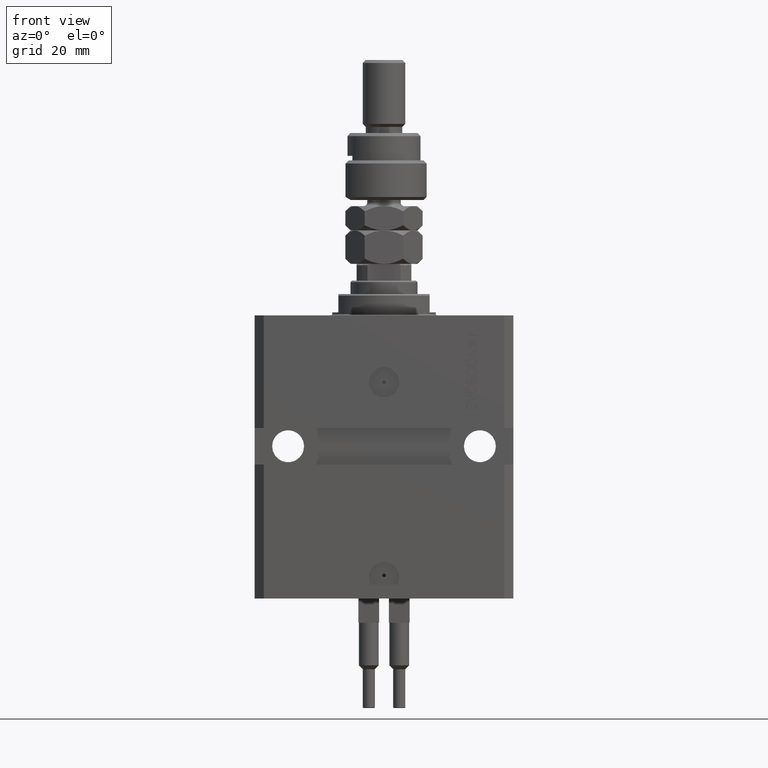
[diagram: clean part render]
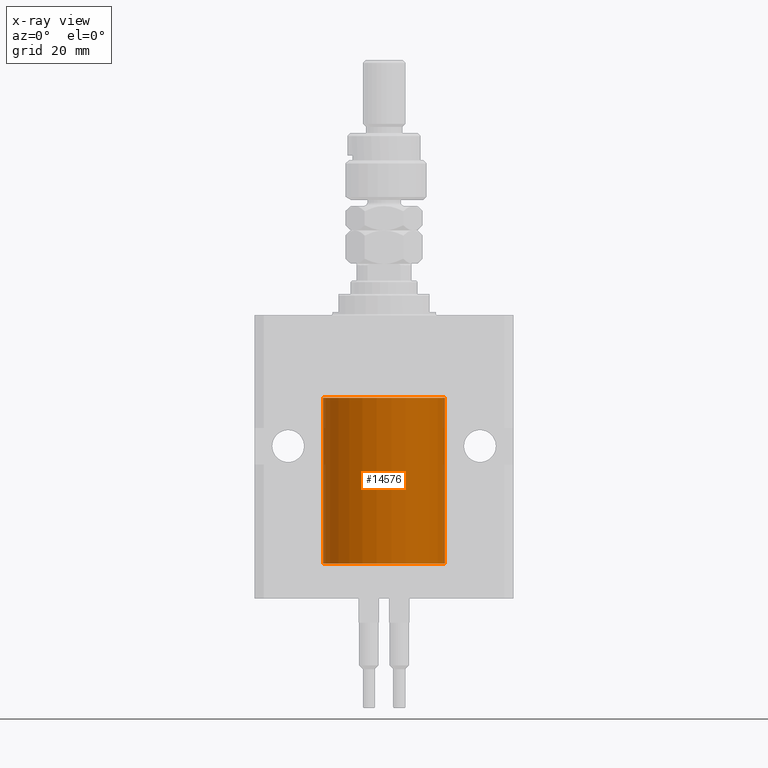
[diagram: x-ray — body ghosted, one internal face saturated and labeled with its STEP entity id]
A machine part, front view, then the same camera in x-ray: the body is ghosted and one INTERNAL B-rep face — a face not visible from any outside direction — is saturated and labeled: STEP entity #14576.
In plain terms, the highlighted cylindrical surface (partial cylindrical patch) has radius 20 mm, axis along (0, 0, 1).
Its self-contained STEP definition (entity closure, byte-faithful):
#136 = CARTESIAN_POINT ( 'NONE',  ( -20.00000000000000000, 2.449293598294706513E-15, -81.60000000000000853 ) ) ;
#766 = CARTESIAN_POINT ( 'NONE',  ( 19.99256494106949944, -0.5573539455062719306, -79.32646132359609226 ) ) ;
#912 = LINE ( 'NONE', #49115, #42212 ) ;
#1432 = ORIENTED_EDGE ( 'NONE', *, *, #43596, .F. ) ;
#1591 = EDGE_LOOP ( 'NONE', ( #1432, #45479, #28044, #2609, #29523, #27790, #42612 ) ) ;
#2609 = ORIENTED_EDGE ( 'NONE', *, *, #41056, .F. ) ;
#2711 = EDGE_CURVE ( 'NONE', #39632, #10530, #5305, .T. ) ;
#3331 = DIRECTION ( 'NONE',  ( 1.000000000000000000, 0.000000000000000000, 0.000000000000000000 ) ) ;
#3509 = CARTESIAN_POINT ( 'NONE',  ( 19.99023198964933812, -0.6250000000000828226, -78.83503171949485022 ) ) ;
#5305 = LINE ( 'NONE', #48352, #22297 ) ;
#6122 = AXIS2_PLACEMENT_3D ( 'NONE', #35960, #11345, #3331 ) ;
#6137 = EDGE_CURVE ( 'NONE', #27048, #9987, #40641, .T. ) ;
#6875 = DIRECTION ( 'NONE',  ( 0.000000000000000000, 0.000000000000000000, 1.000000000000000000 ) ) ;
#8925 = DIRECTION ( 'NONE',  ( -0.000000000000000000, -0.000000000000000000, 1.000000000000000000 ) ) ;
#9987 = VERTEX_POINT ( 'NONE', #47212 ) ;
#10530 = VERTEX_POINT ( 'NONE', #47288 ) ;
#10756 = CARTESIAN_POINT ( 'NONE',  ( 19.99023198964933812, -0.6250000000000827116, -79.00000000000000000 ) ) ;
#11345 = DIRECTION ( 'NONE',  ( -0.000000000000000000, -0.000000000000000000, 1.000000000000000000 ) ) ;
#11662 = CARTESIAN_POINT ( 'NONE',  ( 19.99023198964934167, -0.6250000000000828226, -79.16479419982725574 ) ) ;
#11911 = CARTESIAN_POINT ( 'NONE',  ( 19.99023198964933812, -0.6250000000000827116, -79.00000000000000000 ) ) ;
#12117 = CARTESIAN_POINT ( 'NONE',  ( 19.99023198964933812, -0.6250000000000827116, -79.00000000000000000 ) ) ;
#12814 = DIRECTION ( 'NONE',  ( -0.000000000000000000, -0.000000000000000000, 1.000000000000000000 ) ) ;
#13732 = EDGE_CURVE ( 'NONE', #15407, #27048, #23213, .T. ) ;
#14576 = ADVANCED_FACE ( 'NONE', ( #35713 ), #15485, .F. ) ;
#15407 = VERTEX_POINT ( 'NONE', #24734 ) ;
#15485 = CYLINDRICAL_SURFACE ( 'NONE', #6122, 20.00000000000000000 ) ;
#15713 = CARTESIAN_POINT ( 'NONE',  ( 20.00000000000010303, 3.555666352936568165E-13, -78.37499999999667466 ) ) ;
#16300 = CARTESIAN_POINT ( 'NONE',  ( 20.00000000000000000, -4.058908006348821872E-15, -79.62500000000000000 ) ) ;
#16731 = DIRECTION ( 'NONE',  ( 1.000000000000000000, 0.000000000000000000, 0.000000000000000000 ) ) ;
#21392 = CARTESIAN_POINT ( 'NONE',  ( 0.000000000000000000, 0.000000000000000000, -27.10000000000000142 ) ) ;
#21649 = DIRECTION ( 'NONE',  ( 1.000000000000000000, 0.000000000000000000, 0.000000000000000000 ) ) ;
#21740 = CARTESIAN_POINT ( 'NONE',  ( -20.00000000000000000, 2.449293598294706513E-15, -27.10000000000000142 ) ) ;
#22214 = VERTEX_POINT ( 'NONE', #15713 ) ;
#22297 = VECTOR ( 'NONE', #12814, 1000.000000000000000 ) ;
#23201 = CARTESIAN_POINT ( 'NONE',  ( 20.00000000000000000, -0.1632180151482451602, -78.37499999999984368 ) ) ;
#23213 = LINE ( 'NONE', #136, #48266 ) ;
#24065 = CIRCLE ( 'NONE', #26568, 20.00000000000000000 ) ;
#24734 = CARTESIAN_POINT ( 'NONE',  ( -20.00000000000000000, 2.449293598294706513E-15, -81.60000000000000853 ) ) ;
#26568 = AXIS2_PLACEMENT_3D ( 'NONE', #30224, #6875, #21649 ) ;
#27048 = VERTEX_POINT ( 'NONE', #21740 ) ;
#27790 = ORIENTED_EDGE ( 'NONE', *, *, #47542, .T. ) ;
#27999 = CARTESIAN_POINT ( 'NONE',  ( 20.00000000000000000, -0.1650670266421430665, -79.62500000000002842 ) ) ;
#28044 = ORIENTED_EDGE ( 'NONE', *, *, #6137, .T. ) ;
#29523 = ORIENTED_EDGE ( 'NONE', *, *, #46025, .T. ) ;
#29633 = CARTESIAN_POINT ( 'NONE',  ( 20.00000000000000000, 0.000000000000000000, -81.60000000000000853 ) ) ;
#30224 = CARTESIAN_POINT ( 'NONE',  ( 0.000000000000000000, 0.000000000000000000, -81.60000000000000853 ) ) ;
#30484 = CARTESIAN_POINT ( 'NONE',  ( 20.00000000000010303, 3.555666352936568165E-13, -78.37499999999667466 ) ) ;
#35713 = FACE_OUTER_BOUND ( 'NONE', #1591, .T. ) ;
#35960 = CARTESIAN_POINT ( 'NONE',  ( 0.000000000000000000, 0.000000000000000000, -81.60000000000000853 ) ) ;
#38990 = AXIS2_PLACEMENT_3D ( 'NONE', #21392, #45001, #16731 ) ;
#39019 = CARTESIAN_POINT ( 'NONE',  ( 19.99766790699043995, -0.3264769477312362556, -78.44266063830006885 ) ) ;
#39632 = VERTEX_POINT ( 'NONE', #29633 ) ;
#40641 = CIRCLE ( 'NONE', #38990, 20.00000000000000000 ) ;
#40676 = B_SPLINE_CURVE_WITH_KNOTS ( 'NONE', 3,
 ( #11911, #11662, #766, #47691, #27999, #16300 ),
 .UNSPECIFIED., .F., .F.,
 ( 4, 2, 4 ),
 ( 0.002931526102908805446, 0.003419696219975630440, 0.003907866337042455000 ),
 .UNSPECIFIED. ) ;
#41056 = EDGE_CURVE ( 'NONE', #22214, #9987, #912, .T. ) ;
#41445 = VERTEX_POINT ( 'NONE', #12117 ) ;
#42212 = VECTOR ( 'NONE', #8925, 1000.000000000000000 ) ;
#42612 = ORIENTED_EDGE ( 'NONE', *, *, #2711, .F. ) ;
#43596 = EDGE_CURVE ( 'NONE', #15407, #39632, #24065, .T. ) ;
#45001 = DIRECTION ( 'NONE',  ( 0.000000000000000000, 0.000000000000000000, 1.000000000000000000 ) ) ;
#45479 = ORIENTED_EDGE ( 'NONE', *, *, #13732, .T. ) ;
#46025 = EDGE_CURVE ( 'NONE', #22214, #41445, #51268, .T. ) ;
#46285 = CARTESIAN_POINT ( 'NONE',  ( 19.99257096259849931, -0.5571491910957669935, -78.67319862246098694 ) ) ;
#47212 = CARTESIAN_POINT ( 'NONE',  ( 20.00000000000000000, 0.000000000000000000, -27.10000000000000142 ) ) ;
#47288 = CARTESIAN_POINT ( 'NONE',  ( 20.00000000000000000, -4.058908006348821872E-15, -79.62500000000000000 ) ) ;
#47542 = EDGE_CURVE ( 'NONE', #41445, #10530, #40676, .T. ) ;
#47691 = CARTESIAN_POINT ( 'NONE',  ( 19.99766246719553209, -0.3267907458473873761, -79.55716086079694094 ) ) ;
#48266 = VECTOR ( 'NONE', #50438, 1000.000000000000000 ) ;
#48352 = CARTESIAN_POINT ( 'NONE',  ( 20.00000000000000000, 0.000000000000000000, -81.60000000000000853 ) ) ;
#49115 = CARTESIAN_POINT ( 'NONE',  ( 20.00000000000000000, 0.000000000000000000, -81.60000000000000853 ) ) ;
#50438 = DIRECTION ( 'NONE',  ( -0.000000000000000000, -0.000000000000000000, 1.000000000000000000 ) ) ;
#51268 = B_SPLINE_CURVE_WITH_KNOTS ( 'NONE', 3,
 ( #30484, #23201, #39019, #46285, #3509, #10756 ),
 .UNSPECIFIED., .F., .F.,
 ( 4, 2, 4 ),
 ( 0.001954154509844075859, 0.002442840306376440652, 0.002931526102908805446 ),
 .UNSPECIFIED. ) ;